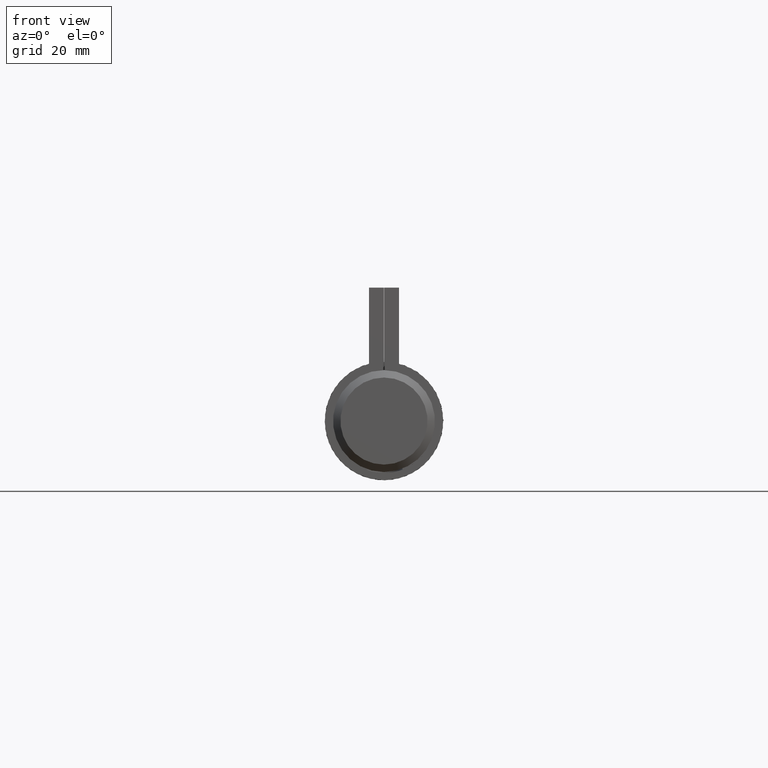
[diagram: clean part render]
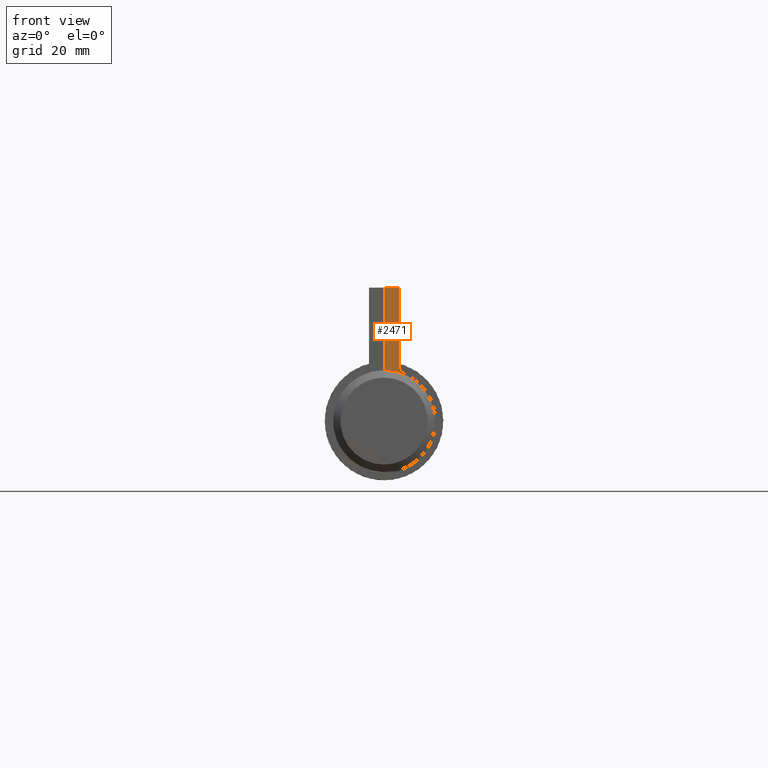
[diagram: same view with one face highlighted and labeled with its STEP entity id]
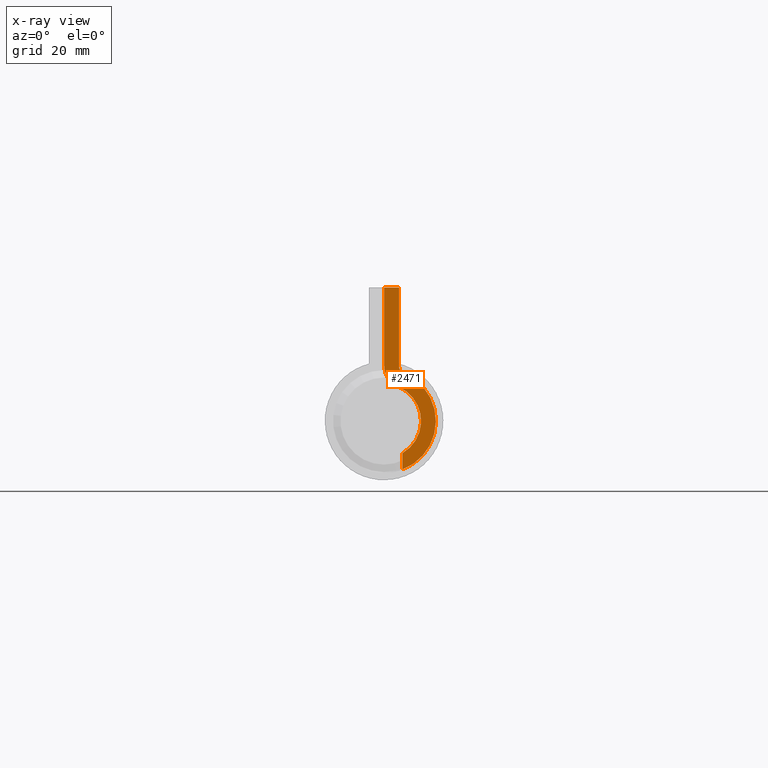
[diagram: x-ray of the same camera — body ghosted, the highlighted face saturated]
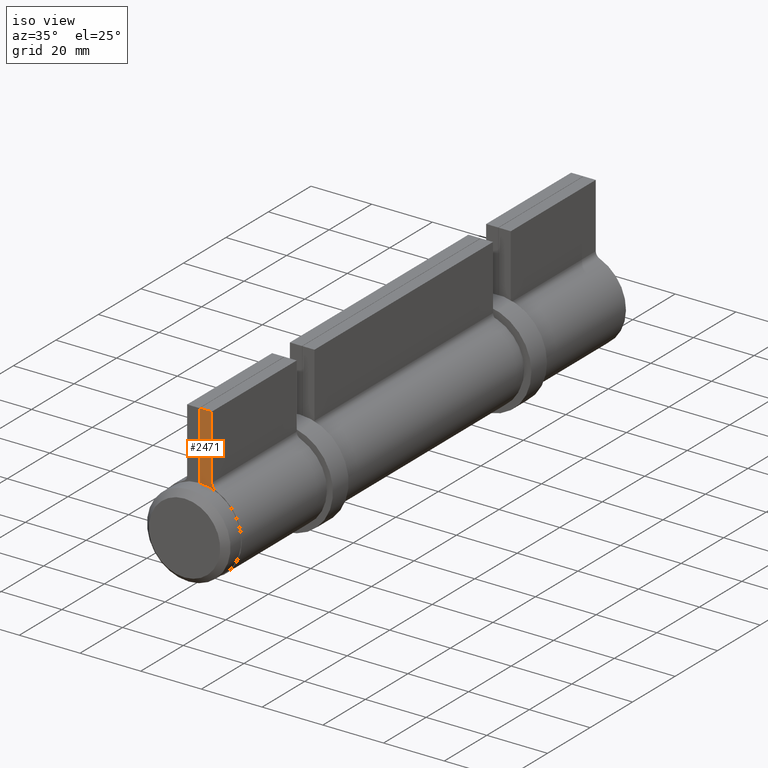
[diagram: same view with one face highlighted and labeled with its STEP entity id]
A machine part, front view. The second image highlights one B-rep face of the part: STEP entity #2471.
The next image is the same camera in x-ray: the body ghosted, the highlighted face saturated — about 0% of this face is hidden behind the body in this view.
A second angle (iso view) of the same face is appended — the face is thin or edge-on in the first view.
In plain terms, the highlighted planar face has unit normal (0, 1, 0).
Its self-contained STEP definition (entity closure, byte-faithful):
#30 = ORIENTED_EDGE ( 'NONE', *, *, #9715, .F. ) ;
#631 = AXIS2_PLACEMENT_3D ( 'NONE', #1388, #5285, #2893 ) ;
#1271 = CARTESIAN_POINT ( 'NONE',  ( -0.04999999999999969746, -20.00000000000000000, -14.81207277864917948 ) ) ;
#1335 = VECTOR ( 'NONE', #8605, 1000.000000000000000 ) ;
#1388 = CARTESIAN_POINT ( 'NONE',  ( -6.049999999999999822, -20.00000000000000000, -14.81207277864917948 ) ) ;
#1393 = DIRECTION ( 'NONE',  ( 0.000000000000000000, 0.000000000000000000, 1.000000000000000000 ) ) ;
#1397 = DIRECTION ( 'NONE',  ( 0.000000000000000000, 0.000000000000000000, -1.000000000000000000 ) ) ;
#1432 = VERTEX_POINT ( 'NONE', #9982 ) ;
#1527 = CARTESIAN_POINT ( 'NONE',  ( -5.000000000000002665, -20.00000000000000000, -36.00099999999999767 ) ) ;
#1741 = ORIENTED_EDGE ( 'NONE', *, *, #6609, .F. ) ;
#1755 = DIRECTION ( 'NONE',  ( 0.000000000000000000, 1.000000000000000000, -0.000000000000000000 ) ) ;
#1848 = DIRECTION ( 'NONE',  ( 0.000000000000000000, 0.000000000000000000, 1.000000000000000000 ) ) ;
#1851 = EDGE_CURVE ( 'NONE', #6189, #3092, #2930, .T. ) ;
#1989 = ORIENTED_EDGE ( 'NONE', *, *, #4186, .T. ) ;
#2471 = ADVANCED_FACE ( 'NONE', ( #9948 ), #4125, .F. ) ;
#2893 = DIRECTION ( 'NONE',  ( 0.000000000000000000, 0.000000000000000000, 1.000000000000000000 ) ) ;
#2930 = CIRCLE ( 'NONE', #4901, 14.00000000000000000 ) ;
#2961 = DIRECTION ( 'NONE',  ( 0.000000000000000000, 1.000000000000000000, -0.000000000000000000 ) ) ;
#3073 = CARTESIAN_POINT ( 'NONE',  ( -5.000000000000002665, -20.00000000000000000, 8.660254037844385522 ) ) ;
#3092 = VERTEX_POINT ( 'NONE', #3610 ) ;
#3188 = VECTOR ( 'NONE', #9279, 1000.000000000000000 ) ;
#3315 = VECTOR ( 'NONE', #1397, 1000.000000000000000 ) ;
#3610 = CARTESIAN_POINT ( 'NONE',  ( -5.000000000000002665, -20.00000000000000000, 13.07669683062201926 ) ) ;
#3630 = CARTESIAN_POINT ( 'NONE',  ( 0.000000000000000000, -20.00000000000000000, -36.00000000000000000 ) ) ;
#3947 = LINE ( 'NONE', #3630, #8526 ) ;
#4125 = PLANE ( 'NONE',  #8107 ) ;
#4146 = ORIENTED_EDGE ( 'NONE', *, *, #9285, .F. ) ;
#4186 = EDGE_CURVE ( 'NONE', #6189, #1432, #8229, .T. ) ;
#4327 = AXIS2_PLACEMENT_3D ( 'NONE', #6124, #2961, #1393 ) ;
#4330 = CARTESIAN_POINT ( 'NONE',  ( -0.04999999999999969746, -20.00000000000000000, -36.00000000000000000 ) ) ;
#4579 = ORIENTED_EDGE ( 'NONE', *, *, #1851, .F. ) ;
#4663 = CARTESIAN_POINT ( 'NONE',  ( -5.293749999999995737, -20.00000000000000000, -12.96056368131803538 ) ) ;
#4901 = AXIS2_PLACEMENT_3D ( 'NONE', #5453, #7788, #9313 ) ;
#4940 = VERTEX_POINT ( 'NONE', #1271 ) ;
#5025 = VERTEX_POINT ( 'NONE', #3073 ) ;
#5077 = ORIENTED_EDGE ( 'NONE', *, *, #7199, .T. ) ;
#5089 = DIRECTION ( 'NONE',  ( 0.000000000000000000, 1.000000000000000000, -0.000000000000000000 ) ) ;
#5285 = DIRECTION ( 'NONE',  ( 0.000000000000000000, 1.000000000000000000, -0.000000000000000000 ) ) ;
#5453 = CARTESIAN_POINT ( 'NONE',  ( 0.000000000000000000, -20.00000000000000000, 0.000000000000000000 ) ) ;
#5751 = DIRECTION ( 'NONE',  ( 0.000000000000000000, 0.000000000000000000, 1.000000000000000000 ) ) ;
#5810 = VERTEX_POINT ( 'NONE', #6361 ) ;
#6124 = CARTESIAN_POINT ( 'NONE',  ( -6.049999999999999822, -20.00000000000000000, -14.81207277864917948 ) ) ;
#6189 = VERTEX_POINT ( 'NONE', #4663 ) ;
#6361 = CARTESIAN_POINT ( 'NONE',  ( -4.049999999999999822, -20.00000000000000000, -36.00000000000000000 ) ) ;
#6564 = ORIENTED_EDGE ( 'NONE', *, *, #8514, .T. ) ;
#6591 = CARTESIAN_POINT ( 'NONE',  ( 0.000000000000000000, -20.00000000000000000, 0.000000000000000000 ) ) ;
#6609 = EDGE_CURVE ( 'NONE', #9696, #4940, #8562, .T. ) ;
#6747 = EDGE_CURVE ( 'NONE', #1432, #5810, #9240, .T. ) ;
#6804 = DIRECTION ( 'NONE',  ( 1.000000000000000000, -0.000000000000000000, 0.000000000000000000 ) ) ;
#6814 = CARTESIAN_POINT ( 'NONE',  ( -0.04999999999999969746, -20.00000000000000000, -0.000000000000000000 ) ) ;
#6980 = CARTESIAN_POINT ( 'NONE',  ( -4.049999999999999822, -20.00000000000000000, -0.000000000000000000 ) ) ;
#7164 = CIRCLE ( 'NONE', #9237, 10.00000000000000000 ) ;
#7199 = EDGE_CURVE ( 'NONE', #5810, #8612, #3947, .T. ) ;
#7452 = EDGE_LOOP ( 'NONE', ( #6564, #4146, #4579, #1989, #8720, #5077, #30, #1741 ) ) ;
#7535 = LINE ( 'NONE', #1527, #3315 ) ;
#7713 = CARTESIAN_POINT ( 'NONE',  ( -3.781250000000001332, -20.00000000000000000, -9.257545486655736511 ) ) ;
#7788 = DIRECTION ( 'NONE',  ( 0.000000000000000000, 1.000000000000000000, -0.000000000000000000 ) ) ;
#8107 = AXIS2_PLACEMENT_3D ( 'NONE', #8922, #1755, #5751 ) ;
#8229 = CIRCLE ( 'NONE', #631, 2.000000000000000000 ) ;
#8514 = EDGE_CURVE ( 'NONE', #9696, #5025, #7164, .T. ) ;
#8526 = VECTOR ( 'NONE', #6804, 1000.000000000000000 ) ;
#8562 = CIRCLE ( 'NONE', #4327, 6.000000000000000000 ) ;
#8605 = DIRECTION ( 'NONE',  ( 0.000000000000000000, 0.000000000000000000, -1.000000000000000000 ) ) ;
#8612 = VERTEX_POINT ( 'NONE', #4330 ) ;
#8720 = ORIENTED_EDGE ( 'NONE', *, *, #6747, .T. ) ;
#8922 = CARTESIAN_POINT ( 'NONE',  ( 0.000000000000000000, -20.00000000000000000, 0.000000000000000000 ) ) ;
#9237 = AXIS2_PLACEMENT_3D ( 'NONE', #6591, #5089, #1848 ) ;
#9240 = LINE ( 'NONE', #6980, #1335 ) ;
#9279 = DIRECTION ( 'NONE',  ( 0.000000000000000000, 0.000000000000000000, -1.000000000000000000 ) ) ;
#9285 = EDGE_CURVE ( 'NONE', #3092, #5025, #7535, .T. ) ;
#9313 = DIRECTION ( 'NONE',  ( 0.000000000000000000, 0.000000000000000000, 1.000000000000000000 ) ) ;
#9696 = VERTEX_POINT ( 'NONE', #7713 ) ;
#9714 = LINE ( 'NONE', #6814, #3188 ) ;
#9715 = EDGE_CURVE ( 'NONE', #4940, #8612, #9714, .T. ) ;
#9948 = FACE_OUTER_BOUND ( 'NONE', #7452, .T. ) ;
#9982 = CARTESIAN_POINT ( 'NONE',  ( -4.049999999999999822, -20.00000000000000000, -14.81207277864917948 ) ) ;